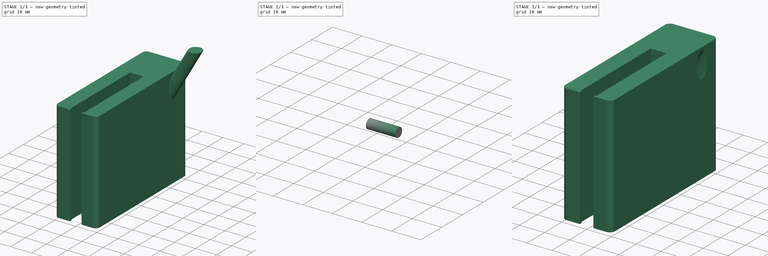
[diagram: build sequence overview — one tinted view per stage of 3, left to right]
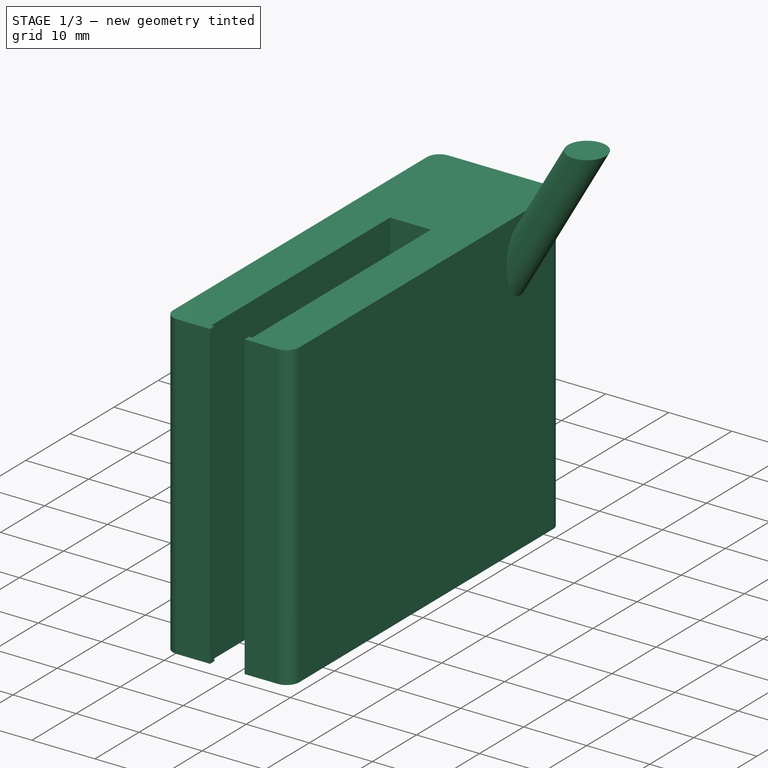
[diagram: stage 1 of 3 — iso view after this stage's code; geometry added in this stage tinted green]
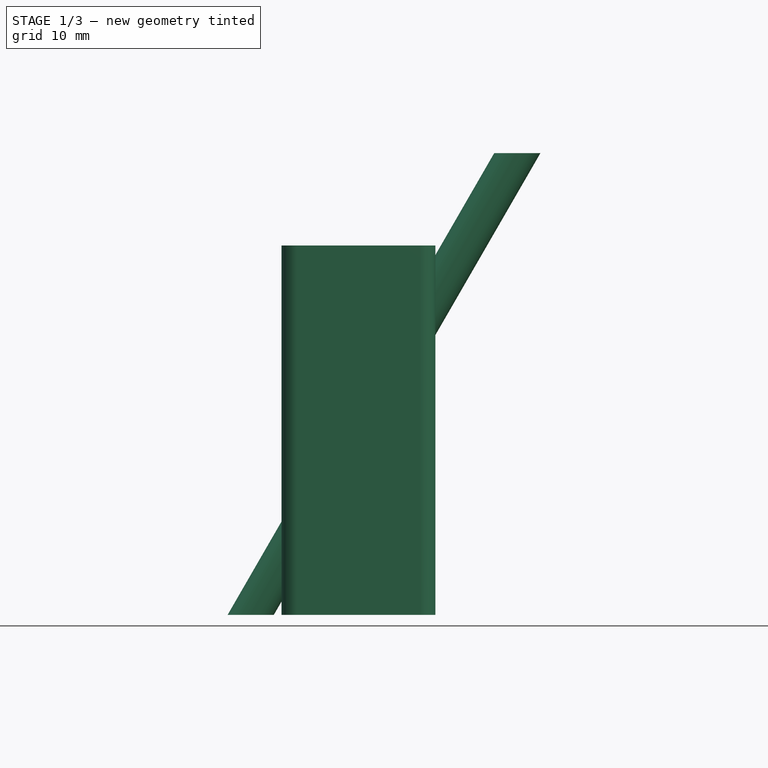
[diagram: stage 1 of 3 — front view after this stage's code; geometry added in this stage tinted green]
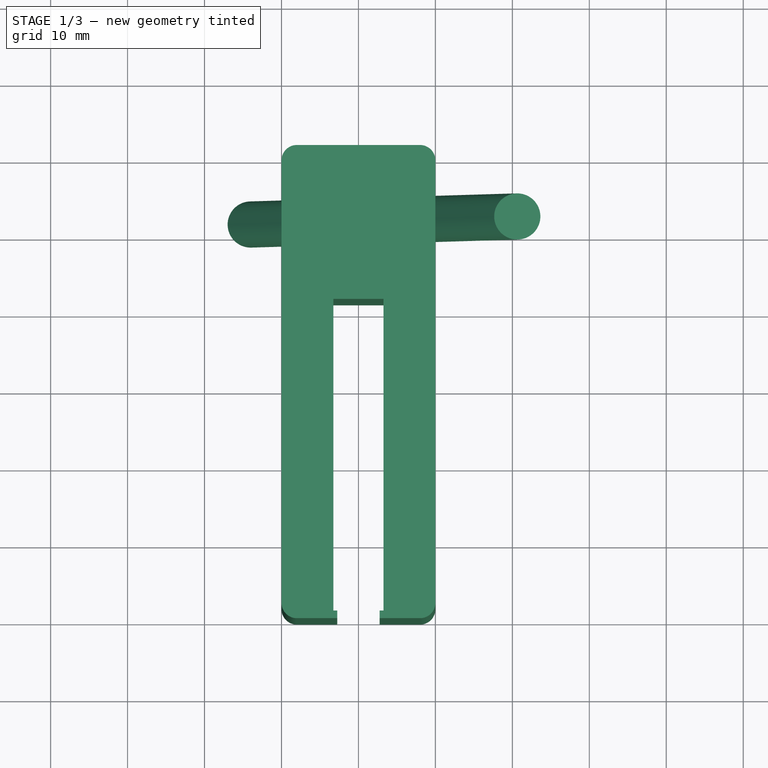
[diagram: stage 1 of 3 — top view after this stage's code; geometry added in this stage tinted green]
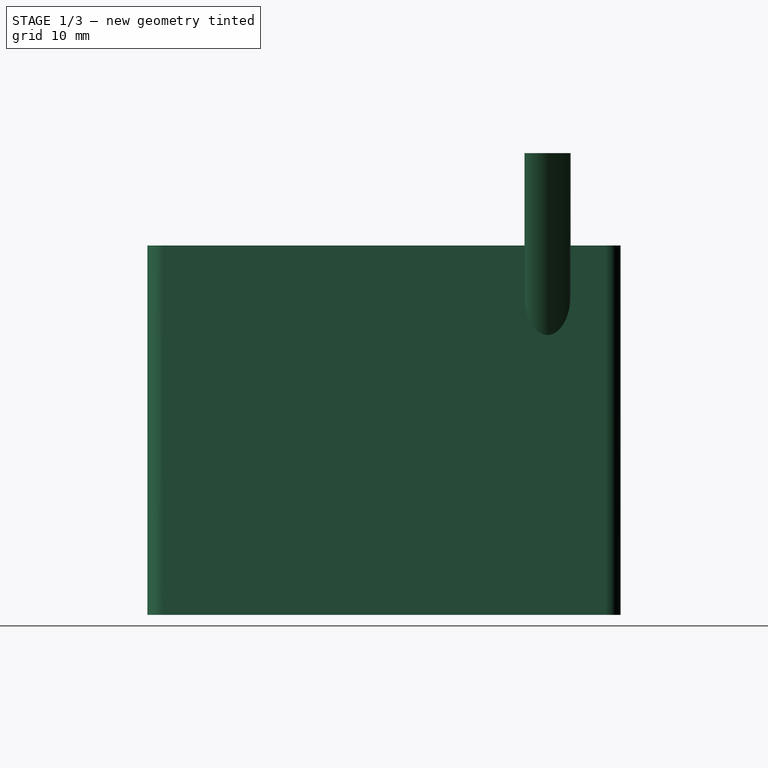
[diagram: stage 1 of 3 — right view after this stage's code; geometry added in this stage tinted green]
FCSTD DOCUMENT  (FreeCAD 0.20RUnknown)
Label: FilamentGuide
License: All rights reserved
LicenseURL: http://en.wikipedia.org/wiki/All_rights_reserved
objects: Sketcher::SketchObject×3, Part::Face×3, Part::Extrusion×3, Part::Cut×3, Part::Cylinder×1, Part::Fillet×1
note: 14 computed .brp shape members not serialized (recipe doc carries the construction recipe); baked Part::Feature solids carry a one-line shape summary decoded from their .brp

FEATURE [Sketcher::SketchObject] Sketch
  FullyConstrained = true
  sketch-geometry (12):
    g0: LineSegment StartX=0 StartY=0 StartZ=0 EndX=7.25 EndY=0 EndZ=0
    g1: LineSegment StartX=7.25 StartY=0 StartZ=0 EndX=7.25 EndY=1 EndZ=0
    g2: LineSegment StartX=7.25 StartY=1 StartZ=0 EndX=6.75 EndY=1 EndZ=0
    g3: LineSegment StartX=6.75 StartY=1 StartZ=0 EndX=6.75 EndY=41.5 EndZ=0
    g4: LineSegment StartX=6.75 StartY=41.5 StartZ=0 EndX=13.25 EndY=41.5 EndZ=0
    g5: LineSegment StartX=13.25 StartY=41.5 StartZ=0 EndX=13.25 EndY=1 EndZ=0
    g6: LineSegment StartX=13.25 StartY=1 StartZ=0 EndX=12.75 EndY=1 EndZ=0
    g7: LineSegment StartX=12.75 StartY=1 StartZ=0 EndX=12.75 EndY=0 EndZ=0
    g8: LineSegment StartX=12.75 StartY=0 StartZ=0 EndX=20 EndY=0 EndZ=0
    g9: LineSegment StartX=20 StartY=0 StartZ=0 EndX=20 EndY=61.5 EndZ=0
    g10: LineSegment StartX=20 StartY=61.5 StartZ=0 EndX=0 EndY=61.5 EndZ=0
    g11: LineSegment StartX=0 StartY=61.5 StartZ=0 EndX=0 EndY=0 EndZ=0
  constraints (35):
    c: Horizontal(g0)
    c: Coincident(g0,g1)
    c: Vertical(g1)
    c: Coincident(g1,g2)
    c: Horizontal(g2)
    c: Coincident(g2,g3)
    c: Vertical(g3)
    c: Coincident(g3,g4)
    c: Horizontal(g4)
    c: Coincident(g4,g5)
    c: Vertical(g5)
    c: Coincident(g5,g6)
    c: Horizontal(g6)
    c: Coincident(g6,g7)
    c: Vertical(g7)
    c: Coincident(g7,g8)
    c: Horizontal(g8)
    c: Coincident(g8,g9)
    c: Vertical(g9)
    c: Coincident(g9,g10)
    c: Horizontal(g10)
    c: Coincident(g10,g11)
    c: Coincident(g11,g0)
    c: Vertical(g11)
    c: DistanceX(g4,g4) = 6.5
    c: Horizontal(g1,g6)
    c: Horizontal(g0,g7)
    c: DistanceY(g1,g1) = 1
    c: DistanceX(g2,g2) = 0.5
    c: DistanceY(g3,g3) = 40.5
    c: Equal(g8,g0)
    c: DistanceX(g10,g10) = 20
    c: DistanceY(g4,g9) = 20
    c: Coincident(g0,g-1)
    c: Equal(g6,g2)
FEATURE [Part::Face] Face
  FaceMakerClass = Part::FaceMakerBullseye
  Sources = -> [Sketch]
FEATURE [Part::Extrusion] Extrude
  Base = -> Sketch
  Dir = (0,0,1)
  DirMode = 2
  FaceMakerClass = Part::FaceMakerBullseye
  LengthFwd = 48
  LengthRev = 0
  Solid = true
  Symmetric = false
FEATURE [Part::Cylinder] Cylinder
  Angle = 360
  AttacherType = Attacher::AttachEngine3D
  FirstAngle = 30
  Height = 60
  Placement = pos=(-4,52,0) rot=(0,0,1;0rad)
  Radius = 3
  SecondAngle = 0
FEATURE [Part::Fillet] Fillet
  Base = -> Extrude
  Edges = 4 edges r=2: [Edge1,Edge26,Edge29,Edge32]
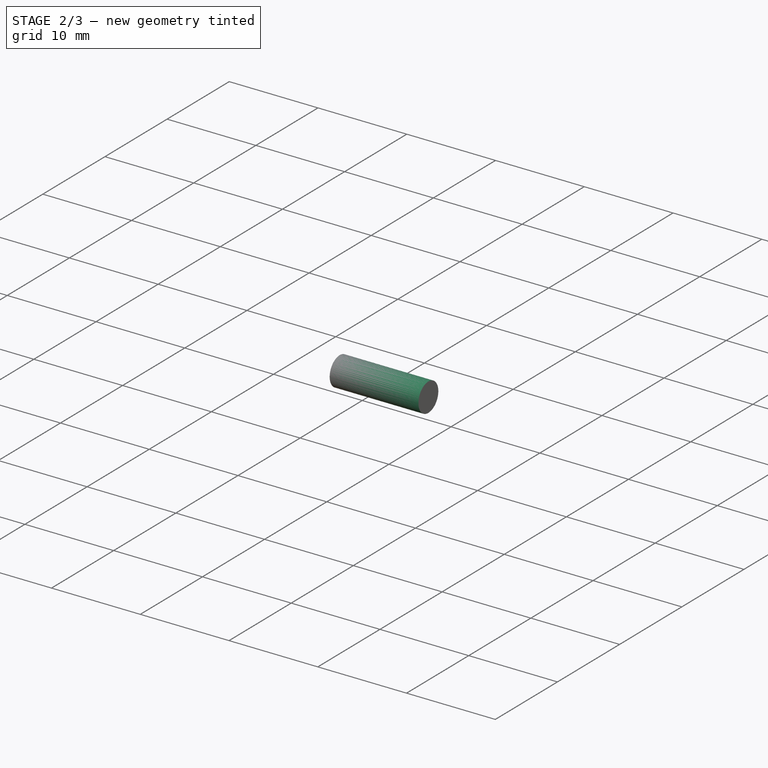
[diagram: stage 2 of 3 — iso view after this stage's code; geometry added in this stage tinted green]
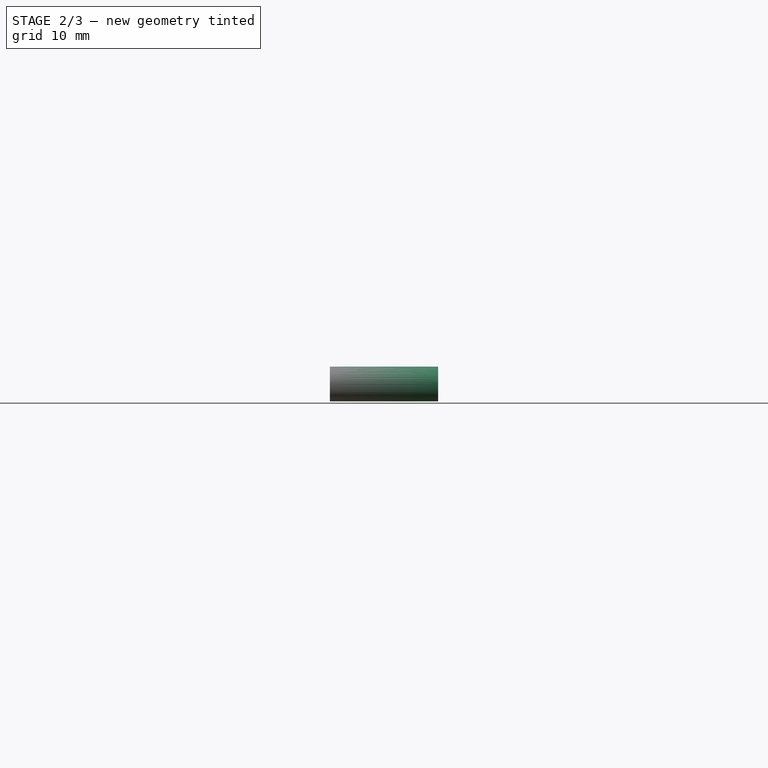
[diagram: stage 2 of 3 — front view after this stage's code; geometry added in this stage tinted green]
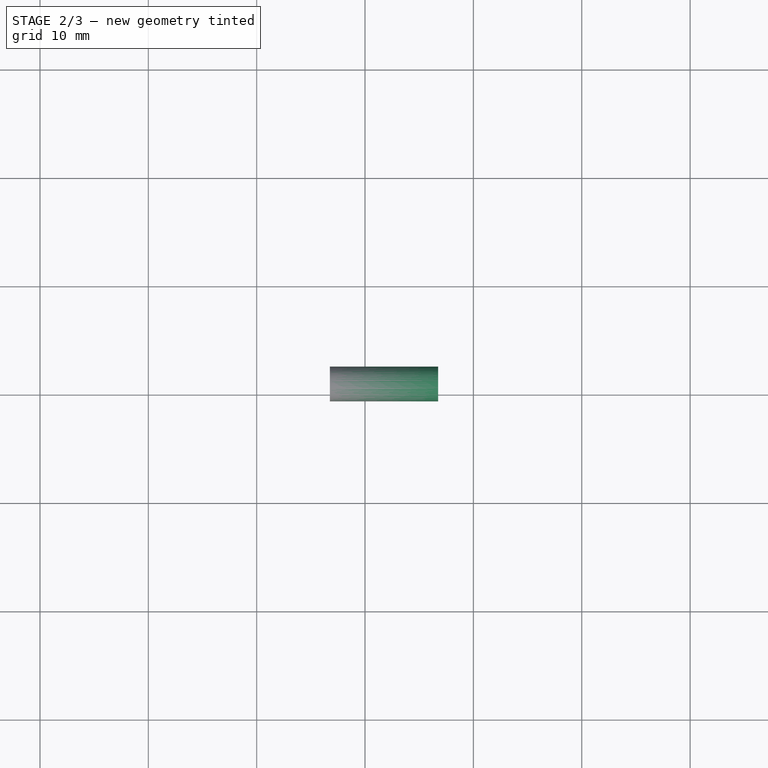
[diagram: stage 2 of 3 — top view after this stage's code; geometry added in this stage tinted green]
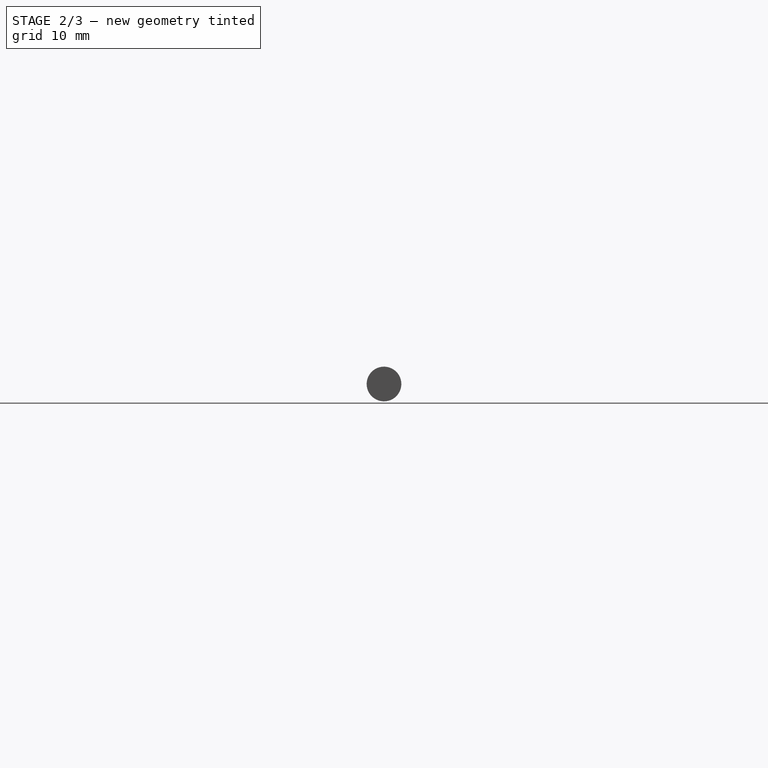
[diagram: stage 2 of 3 — right view after this stage's code; geometry added in this stage tinted green]
FEATURE [Part::Cut] Cut
  Base = -> Fillet
  Tool = -> Cylinder
FEATURE [Sketcher::SketchObject] Sketch001
  FullyConstrained = true
  MapMode = 5
  Placement = pos=(6.75,0,0) rot=(0.57735,0.57735,0.57735;2.0944rad)
  Support = -> [Cut]
  sketch-geometry (1):
    g0: Circle CenterX=21 CenterY=24 CenterZ=0 NormalX=0 NormalY=0 NormalZ=1 AngleXU=0 Radius=1.6
  constraints (3):
    c: Diameter(g0) = 3.2
    c: DistanceY(g-1,g0) = 24
    c: DistanceX(g-1,g0) = 21
FEATURE [Part::Face] Face001
  FaceMakerClass = Part::FaceMakerBullseye
  Sources = -> [Sketch001]
FEATURE [Part::Extrusion] Extrude001
  Base = -> Sketch001
  Dir = (1,0,0)
  DirMode = 2
  FaceMakerClass = Part::FaceMakerBullseye
  LengthFwd = -10
  LengthRev = 0
  Solid = true
  Symmetric = false
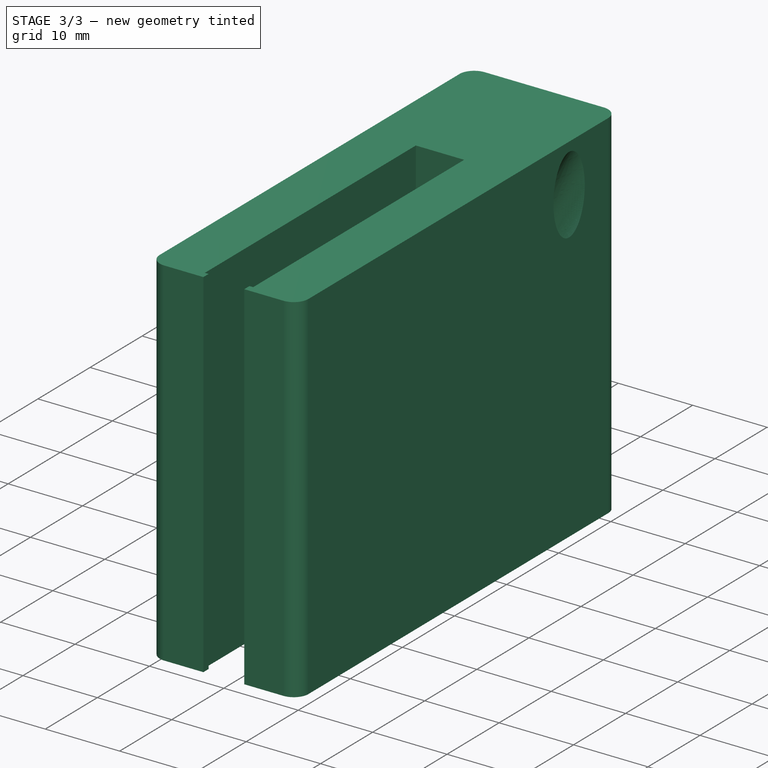
[diagram: stage 3 of 3 — iso view after this stage's code; geometry added in this stage tinted green]
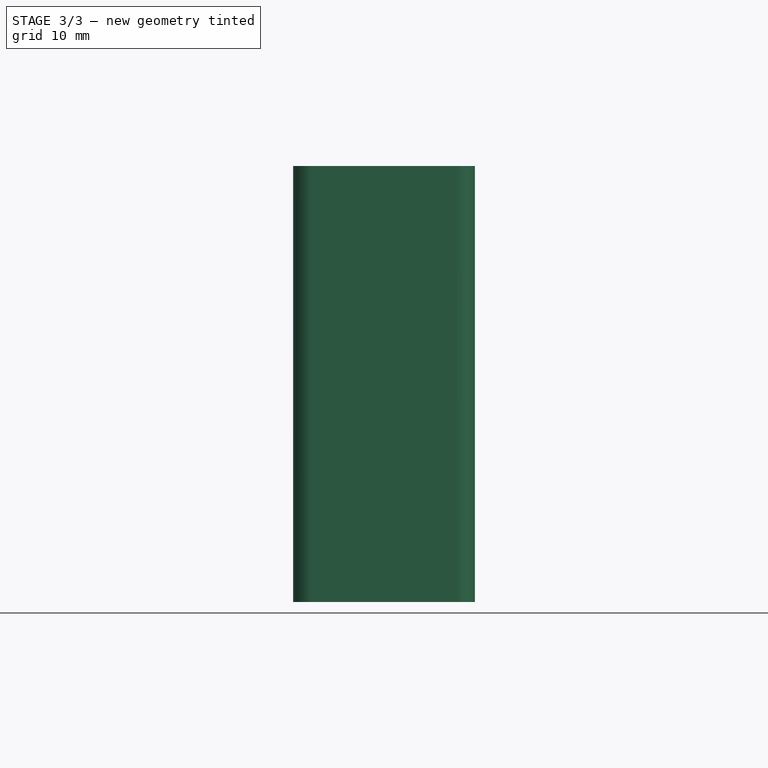
[diagram: stage 3 of 3 — front view after this stage's code; geometry added in this stage tinted green]
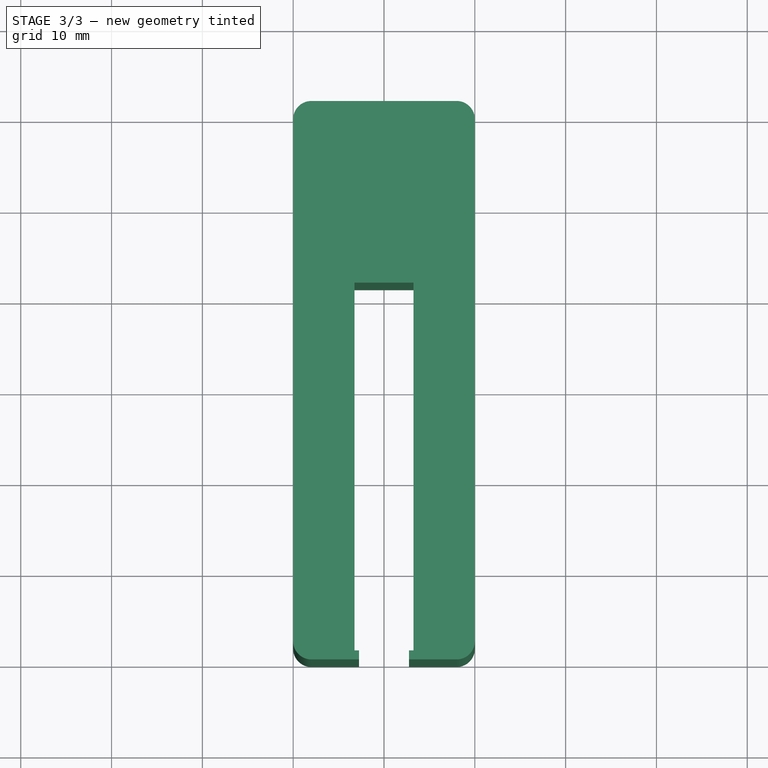
[diagram: stage 3 of 3 — top view after this stage's code; geometry added in this stage tinted green]
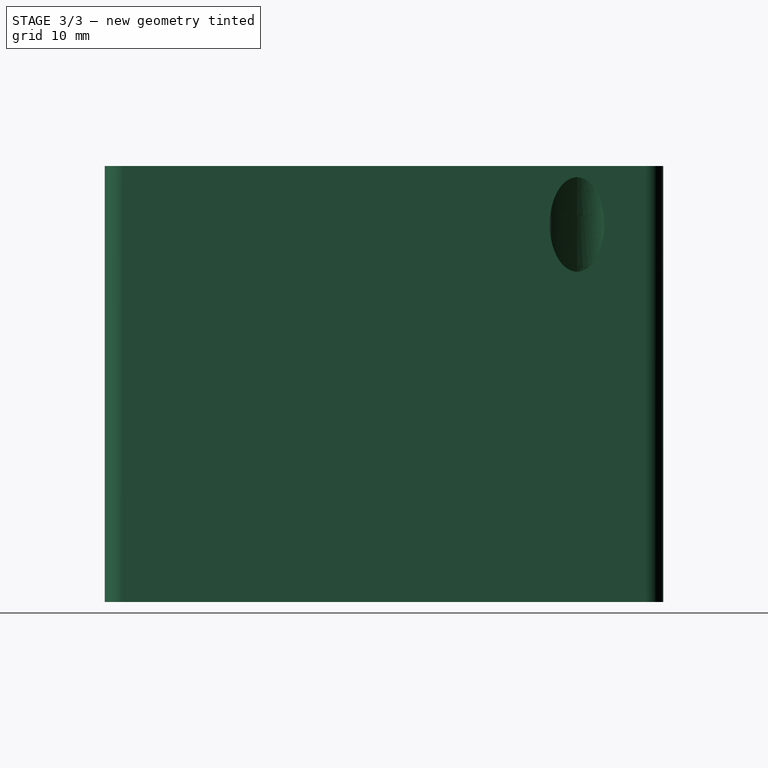
[diagram: stage 3 of 3 — right view after this stage's code; geometry added in this stage tinted green]
FEATURE [Part::Cut] Cut001
  Base = -> Cut
  Tool = -> Extrude001
FEATURE [Sketcher::SketchObject] Sketch002
  ExternalGeometry = -> [Cut001]
  FullyConstrained = true
  MapMode = 5
  Placement = pos=(6.75,0,0) rot=(0.57735,0.57735,0.57735;2.0944rad)
  Support = -> [Cut001]
  sketch-geometry (7):
    g0: LineSegment StartX=17.8246 StartY=24 StartZ=0 EndX=19.4123 EndY=21.25 EndZ=0
    g1: LineSegment StartX=19.4123 StartY=21.25 StartZ=0 EndX=22.5877 EndY=21.25 EndZ=0
    g2: LineSegment StartX=22.5877 StartY=21.25 StartZ=0 EndX=24.1754 EndY=24 EndZ=0
    g3: LineSegment StartX=24.1754 StartY=24 StartZ=0 EndX=22.5877 EndY=26.75 EndZ=0
    g4: LineSegment StartX=22.5877 StartY=26.75 StartZ=0 EndX=19.4123 EndY=26.75 EndZ=0
    g5: LineSegment StartX=19.4123 StartY=26.75 StartZ=0 EndX=17.8246 EndY=24 EndZ=0
    g6: Circle CenterX=21 CenterY=24 CenterZ=0 NormalX=0 NormalY=0 NormalZ=1 AngleXU=0 Radius=3.17543
  constraints (16):
    c: Coincident(g0,g1)
    c: Coincident(g1,g2)
    c: Coincident(g2,g3)
    c: Coincident(g3,g4)
    c: Coincident(g4,g5)
    c: Coincident(g5,g0)
    c: Equal(g0, g1-g5) x5
    c: PointOnObject(g0,g6)
    c: PointOnObject(g1,g6)
    c: PointOnObject(g2,g6)
    c: PointOnObject(g3,g6)
    c: PointOnObject(g4,g6)
    c: PointOnObject(g5,g6)
    c: Distance(g1,g3) = 5.5
    c: Coincident(g-3,g6)
    c: Vertical(g3,g1)
FEATURE [Part::Face] Face002
  FaceMakerClass = Part::FaceMakerBullseye
  Sources = -> [Sketch002]
FEATURE [Part::Extrusion] Extrude002
  Base = -> Sketch002
  Dir = (1,0,0)
  DirMode = 2
  FaceMakerClass = Part::FaceMakerBullseye
  LengthFwd = -2.4
  LengthRev = 0
  Solid = true
  Symmetric = false
FEATURE [Part::Cut] Cut002
  Base = -> Cut001
  Tool = -> Extrude002
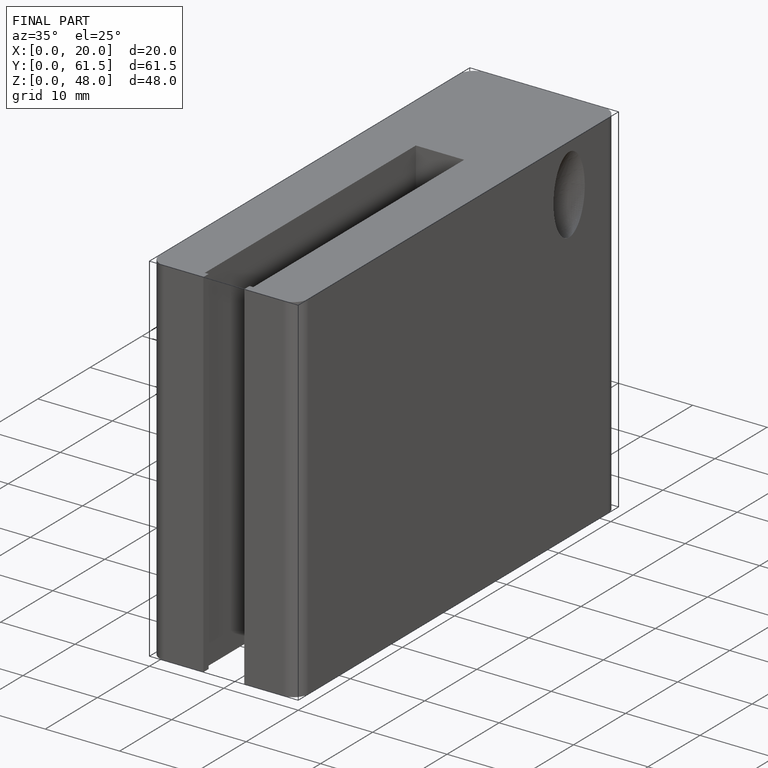
[diagram: finished part — iso view with bounding-box wireframe]
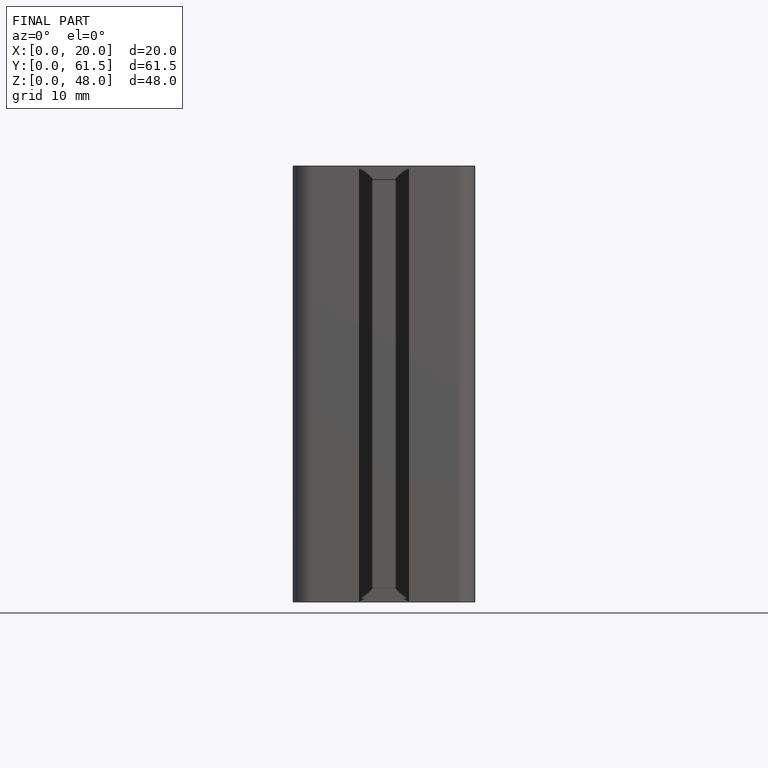
[diagram: finished part — front view with bounding-box wireframe]
